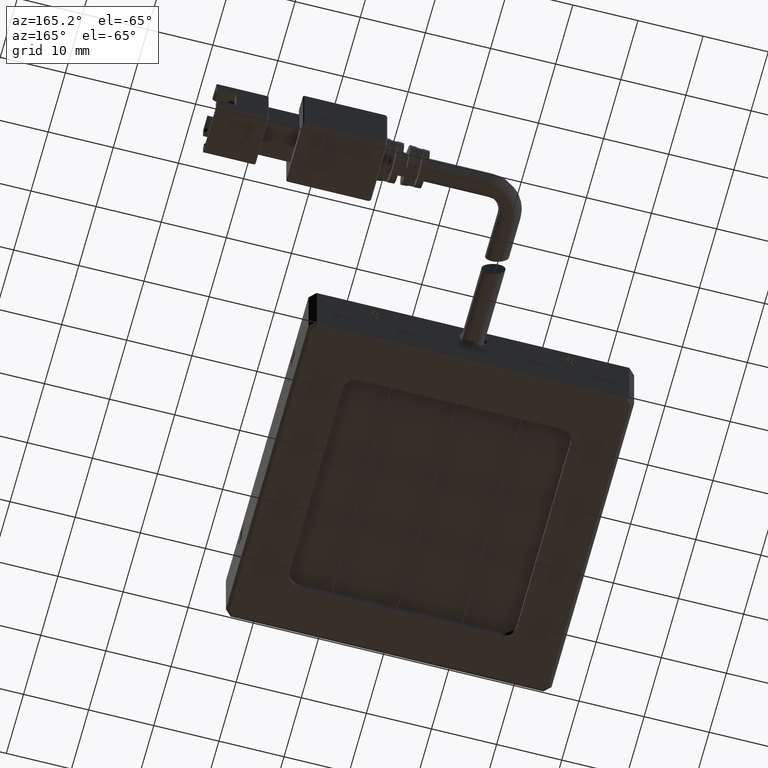
[diagram: clean part render]
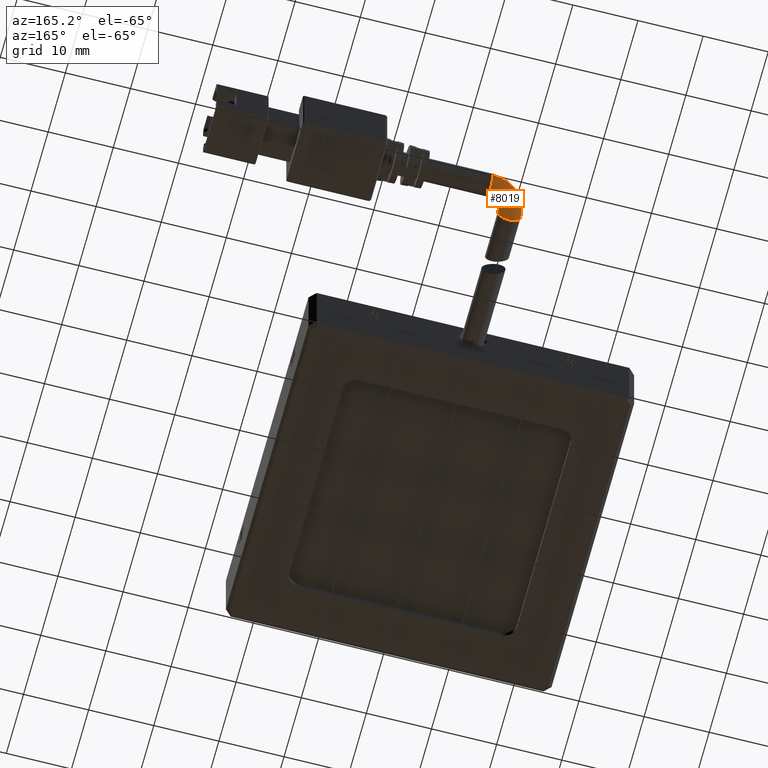
[diagram: same view with one face highlighted and labeled with its STEP entity id]
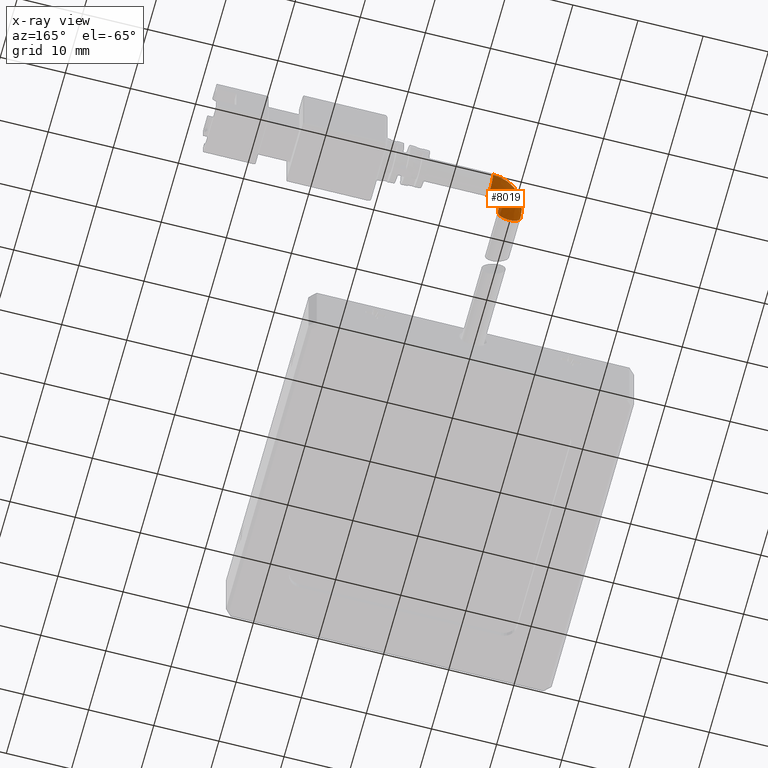
[diagram: x-ray of the same camera — body ghosted, the highlighted face saturated]
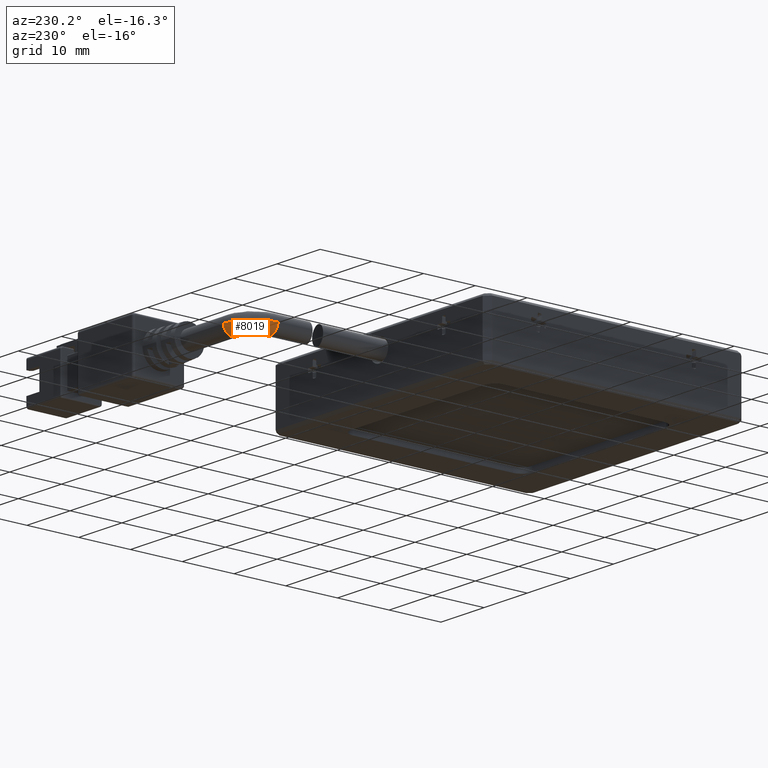
[diagram: same view with one face highlighted and labeled with its STEP entity id]
A machine part, auxiliary view. The second image highlights one B-rep face of the part: STEP entity #8019.
The next image is the same camera in x-ray: the body ghosted, the highlighted face saturated — about 0% of this face is hidden behind the body in this view.
A second angle (auxiliary view) of the same face is appended — the face is thin or edge-on in the first view.
In plain terms, the highlighted face is a freeform B-spline surface patch.
Its self-contained STEP definition (entity closure, byte-faithful):
#691 = CARTESIAN_POINT ( 'NONE',  ( 17.51702531645571500, 63.57941125686103600, -4.750000000000000000 ) ) ;
#2432 = VERTEX_POINT ( 'NONE', #27097 ) ;
#3065 = ORIENTED_EDGE ( 'NONE', *, *, #37905, .T. ) ;
#3446 = AXIS2_PLACEMENT_3D ( 'NONE', #4233, #27018, #7497 ) ;
#3883 = EDGE_CURVE ( 'NONE', #32899, #38861, #4973, .T. ) ;
#3966 = CARTESIAN_POINT ( 'NONE',  ( 23.26702531645571900, 62.46113924050633400, -4.750000000000000000 ) ) ;
#4233 = CARTESIAN_POINT ( 'NONE',  ( 19.26702531645571900, 60.21113924050633400, -1.250000000000000700 ) ) ;
#4973 = CIRCLE ( 'NONE', #3446, 1.749999999999998000 ) ;
#5753 = DIRECTION ( 'NONE',  ( 0.0000000000000000000, -2.465190328815661900E-032, 1.000000000000000000 ) ) ;
#6514 = CIRCLE ( 'NONE', #19694, 5.749999999999998200 ) ;
#6885 = VERTEX_POINT ( 'NONE', #22720 ) ;
#6905 = AXIS2_PLACEMENT_3D ( 'NONE', #31234, #11743, #34464 ) ;
#7220 = CARTESIAN_POINT ( 'NONE',  ( 21.01702531645571900, 61.52915872516687300, -4.750000000000000000 ) ) ;
#7497 = DIRECTION ( 'NONE',  ( -1.000000000000000000, 0.0000000000000000000, 0.0000000000000000000 ) ) ;
#7900 = DIRECTION ( 'NONE',  ( 1.836970198721029700E-016, 1.000000000000000000, 2.465190328815661900E-032 ) ) ;
#8019 = ADVANCED_FACE ( 'NONE', ( #34044 ), #31754, .T. ) ;
#8622 = AXIS2_PLACEMENT_3D ( 'NONE', #15630, #38371, #18876 ) ;
#10486 = CARTESIAN_POINT ( 'NONE',  ( 23.26702531645571900, 62.46113924050633400, -1.250000000000000900 ) ) ;
#11743 = DIRECTION ( 'NONE',  ( 0.0000000000000000000, -2.465190328815661900E-032, 1.000000000000000000 ) ) ;
#12103 = EDGE_CURVE ( 'NONE', #6885, #38861, #6514, .T. ) ;
#13319 = CIRCLE ( 'NONE', #18968, 1.749999999999998000 ) ;
#13640 = CARTESIAN_POINT ( 'NONE',  ( 19.89875330010101400, 65.96113924050634100, -1.250000000000000400 ) ) ;
#13772 = CARTESIAN_POINT ( 'NONE',  ( 21.01702531645571500, 61.52915872516687300, -1.250000000000000900 ) ) ;
#13863 = EDGE_LOOP ( 'NONE', ( #33693, #41602, #3065, #29985, #30814 ) ) ;
#15630 = CARTESIAN_POINT ( 'NONE',  ( 23.26702531645571900, 64.21113924050634100, -1.250000000000000700 ) ) ;
#15997 = CIRCLE ( 'NONE', #8622, 1.750000000000001600 ) ;
#16877 = CARTESIAN_POINT ( 'NONE',  ( 17.51702531645571500, 60.21113924050633400, -1.250000000000000700 ) ) ;
#18685 = CARTESIAN_POINT ( 'NONE',  ( 19.26702531645571900, 60.21113924050633400, -3.000000000000000900 ) ) ;
#18876 = DIRECTION ( 'NONE',  ( 0.0000000000000000000, 1.000000000000000000, -1.239088197126289600E-016 ) ) ;
#18968 = AXIS2_PLACEMENT_3D ( 'NONE', #27407, #7900, #30665 ) ;
#19694 = AXIS2_PLACEMENT_3D ( 'NONE', #25276, #5753, #28540 ) ;
#19813 = CIRCLE ( 'NONE', #6905, 2.249999999999995100 ) ;
#20162 = CARTESIAN_POINT ( 'NONE',  ( 19.89875330010101400, 65.96113924050632700, -4.750000000000000000 ) ) ;
#22720 = CARTESIAN_POINT ( 'NONE',  ( 23.26702531645571900, 65.96113924050634100, -1.250000000000000700 ) ) ;
#23484 = CARTESIAN_POINT ( 'NONE',  ( 17.51702531645571500, 60.21113924050633400, -4.750000000000000000 ) ) ;
#25276 = CARTESIAN_POINT ( 'NONE',  ( 23.26702531645571900, 60.21113924050633400, -1.250000000000000700 ) ) ;
#26735 = CARTESIAN_POINT ( 'NONE',  ( 21.94900583179518000, 62.46113924050633400, -4.750000000000000000 ) ) ;
#27018 = DIRECTION ( 'NONE',  ( 1.836970198721029700E-016, 1.000000000000000000, 2.465190328815661900E-032 ) ) ;
#27097 = CARTESIAN_POINT ( 'NONE',  ( 23.26702531645571900, 62.46113924050633400, -1.250000000000000900 ) ) ;
#27407 = CARTESIAN_POINT ( 'NONE',  ( 19.26702531645571900, 60.21113924050633400, -1.250000000000000700 ) ) ;
#28188 = CARTESIAN_POINT ( 'NONE',  ( 21.01702531645572200, 60.21113924050633400, -1.250000000000000900 ) ) ;
#28540 = DIRECTION ( 'NONE',  ( 0.0000000000000000000, -1.000000000000000000, 0.0000000000000000000 ) ) ;
#29985 = ORIENTED_EDGE ( 'NONE', *, *, #3883, .T. ) ;
#30007 = CARTESIAN_POINT ( 'NONE',  ( 21.01702531645571500, 60.21113924050633400, -4.750000000000000000 ) ) ;
#30665 = DIRECTION ( 'NONE',  ( -1.000000000000000000, 0.0000000000000000000, 0.0000000000000000000 ) ) ;
#30803 = EDGE_CURVE ( 'NONE', #2432, #6885, #15997, .T. ) ;
#30814 = ORIENTED_EDGE ( 'NONE', *, *, #12103, .F. ) ;
#31234 = CARTESIAN_POINT ( 'NONE',  ( 23.26702531645571900, 60.21113924050633400, -1.250000000000000900 ) ) ;
#31754 =( BOUNDED_SURFACE ( )  B_SPLINE_SURFACE ( 3, 3, ( 
 ( #39502, #13640, #36389, #16877 ),
 ( #39637, #20162, #691, #23484 ),
 ( #3966, #26735, #7220, #30007 ),
 ( #10486, #33253, #13772, #36529 ) ),
 .UNSPECIFIED., .F., .F., .F. ) 
 B_SPLINE_SURFACE_WITH_KNOTS ( ( 4, 4 ),
 ( 4, 4 ),
 ( 0.0000000000000000000, 1.000000000000000000 ),
 ( 0.0000000000000000000, 1.000000000000000000 ),
 .UNSPECIFIED. ) 
 GEOMETRIC_REPRESENTATION_ITEM ( )  RATIONAL_B_SPLINE_SURFACE ( (
 ( 1.000000000000000000, 0.8047378541243649400, 0.8047378541243649400, 1.000000000000000000),
 ( 0.3333333333333333700, 0.2682459513747883500, 0.2682459513747883500, 0.3333333333333333700),
 ( 0.3333333333333333700, 0.2682459513747883500, 0.2682459513747883500, 0.3333333333333333700),
 ( 1.000000000000000000, 0.8047378541243649400, 0.8047378541243649400, 1.000000000000000000) ) ) 
 REPRESENTATION_ITEM ( '' )  SURFACE ( )  );
#32899 = VERTEX_POINT ( 'NONE', #18685 ) ;
#33253 = CARTESIAN_POINT ( 'NONE',  ( 21.94900583179518300, 62.46113924050633400, -1.250000000000000900 ) ) ;
#33693 = ORIENTED_EDGE ( 'NONE', *, *, #30803, .F. ) ;
#34044 = FACE_OUTER_BOUND ( 'NONE', #13863, .T. ) ;
#34464 = DIRECTION ( 'NONE',  ( 0.0000000000000000000, -1.000000000000000000, 0.0000000000000000000 ) ) ;
#35975 = VERTEX_POINT ( 'NONE', #28188 ) ;
#36389 = CARTESIAN_POINT ( 'NONE',  ( 17.51702531645571500, 63.57941125686104300, -1.250000000000000400 ) ) ;
#36529 = CARTESIAN_POINT ( 'NONE',  ( 21.01702531645571900, 60.21113924050633400, -1.250000000000000900 ) ) ;
#37905 = EDGE_CURVE ( 'NONE', #35975, #32899, #13319, .T. ) ;
#38371 = DIRECTION ( 'NONE',  ( 1.000000000000000000, 0.0000000000000000000, 0.0000000000000000000 ) ) ;
#38861 = VERTEX_POINT ( 'NONE', #42129 ) ;
#39502 = CARTESIAN_POINT ( 'NONE',  ( 23.26702531645571900, 65.96113924050634100, -1.250000000000000700 ) ) ;
#39637 = CARTESIAN_POINT ( 'NONE',  ( 23.26702531645571900, 65.96113924050632700, -4.750000000000000000 ) ) ;
#41180 = EDGE_CURVE ( 'NONE', #2432, #35975, #19813, .T. ) ;
#41602 = ORIENTED_EDGE ( 'NONE', *, *, #41180, .T. ) ;
#42129 = CARTESIAN_POINT ( 'NONE',  ( 17.51702531645572200, 60.21113924050633400, -1.250000000000000700 ) ) ;